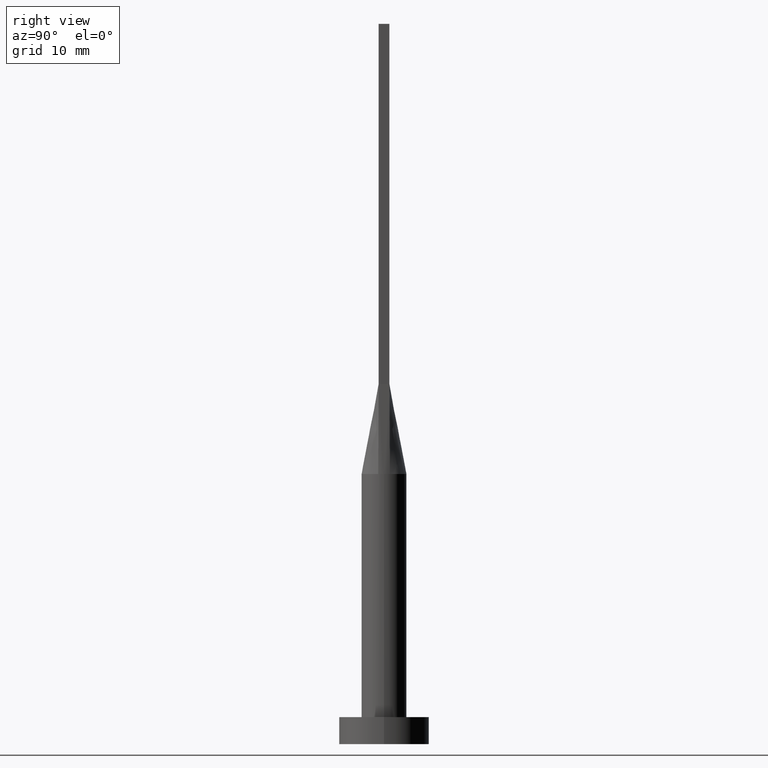
[diagram: clean part render]
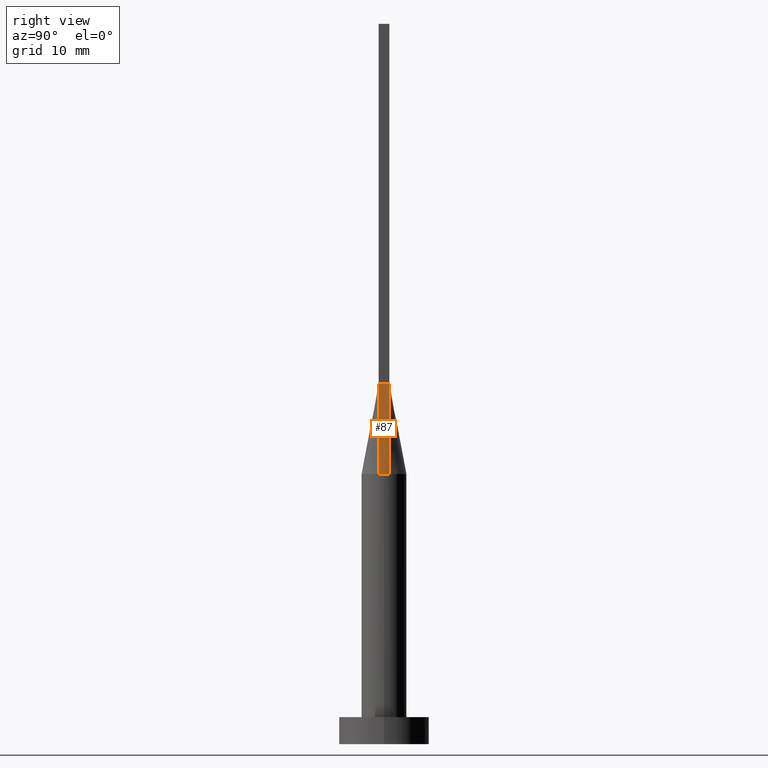
[diagram: same view with one face highlighted and labeled with its STEP entity id]
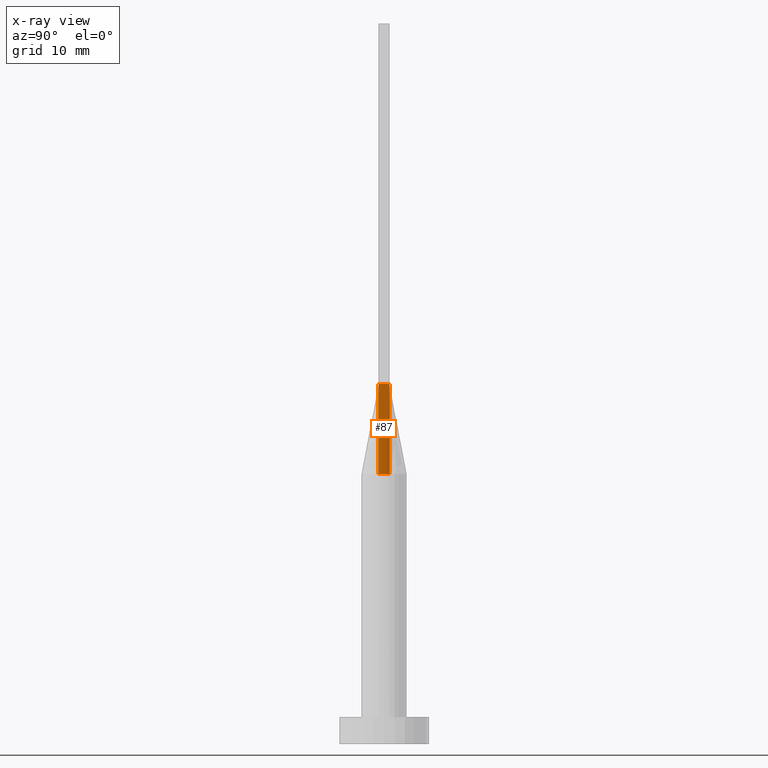
[diagram: x-ray of the same camera — body ghosted, the highlighted face saturated]
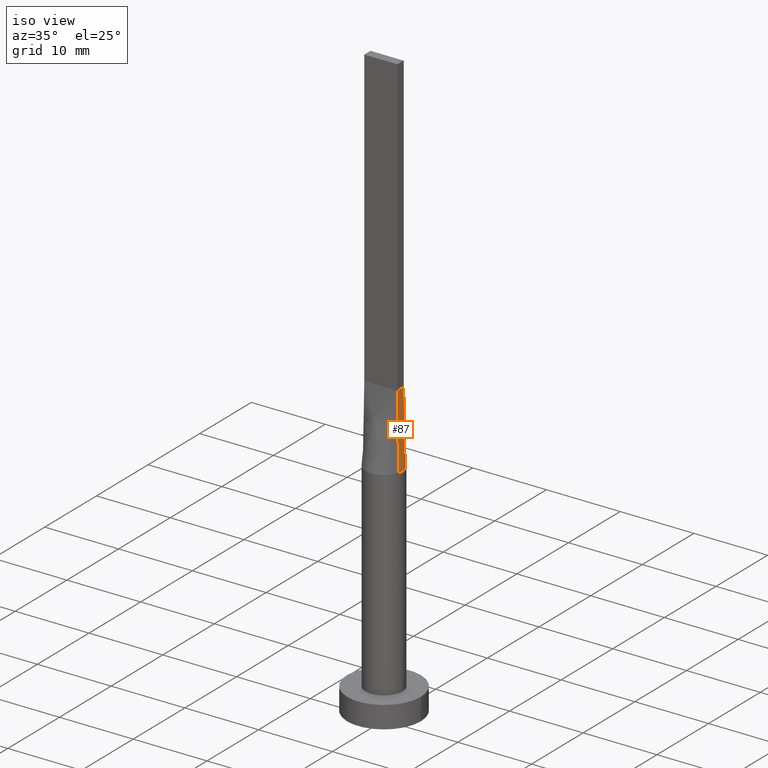
[diagram: same view with one face highlighted and labeled with its STEP entity id]
A machine part, right view. The second image highlights one B-rep face of the part: STEP entity #87.
The next image is the same camera in x-ray: the body ghosted, the highlighted face saturated — about 0% of this face is hidden behind the body in this view.
A second angle (iso view) of the same face is appended — the face is thin or edge-on in the first view.
In plain terms, the highlighted face is a freeform B-spline surface patch.
Its self-contained STEP definition (entity closure, byte-faithful):
#24 = CIRCLE ( 'NONE', #231, 2.500000000000000000 ) ;
#27 = DIRECTION ( 'NONE',  ( -3.614007241618348278E-16, 1.000000000000000000, -0.000000000000000000 ) ) ;
#38 = ORIENTED_EDGE ( 'NONE', *, *, #39, .F. ) ;
#39 = EDGE_CURVE ( 'NONE', #128, #298, #567, .T. ) ;
#50 = FACE_OUTER_BOUND ( 'NONE', #374, .T. ) ;
#85 = DIRECTION ( 'NONE',  ( 1.000000000000000000, 0.000000000000000000, 0.000000000000000000 ) ) ;
#87 = ADVANCED_FACE ( 'NONE', ( #50 ), #121, .T. ) ;
#93 = CARTESIAN_POINT ( 'NONE',  ( 2.470912383581261640, 0.4366877467327808238, 30.00000000000000355 ) ) ;
#99 = CARTESIAN_POINT ( 'NONE',  ( 2.499999999999999112, 0.2184061234416761477, 29.99999999999998934 ) ) ;
#100 = VECTOR ( 'NONE', #141, 1000.000000000000114 ) ;
#103 = CARTESIAN_POINT ( 'NONE',  ( 2.249999999999999556, 0.4000000000000002998, 39.99999999999999289 ) ) ;
#105 = CARTESIAN_POINT ( 'NONE',  ( 2.250000000000000000, -0.5999999999999997558, 40.00000000000000000 ) ) ;
#107 = DIRECTION ( 'NONE',  ( 0.000000000000000000, 0.000000000000000000, 1.000000000000000000 ) ) ;
#121 = B_SPLINE_SURFACE_WITH_KNOTS ( 'NONE', 3, 1, ( 
 ( #137, #186 ),
 ( #179, #317 ),
 ( #536, #495 ),
 ( #99, #500 ),
 ( #93, #103 ),
 ( #279, #456 ) ),
 .UNSPECIFIED., .F., .F., .F.,
 ( 4, 2, 4 ),
 ( 2, 2 ),
 ( 0.000000000000000000, 0.5000000000000000000, 1.000000000000000000 ),
 ( 0.000000000000000000, 1.000000000000000000 ),
 .UNSPECIFIED. ) ;
#123 = VERTEX_POINT ( 'NONE', #133 ) ;
#124 = CARTESIAN_POINT ( 'NONE',  ( 2.249999999999999556, 0.6000000000000001998, 40.00000000000000000 ) ) ;
#128 = VERTEX_POINT ( 'NONE', #538 ) ;
#133 = CARTESIAN_POINT ( 'NONE',  ( 2.499999999999999556, 1.077931475469669239E-17, 29.99999999999999289 ) ) ;
#137 = CARTESIAN_POINT ( 'NONE',  ( 2.415587349003115669, -0.6441566264008309339, 30.00000000000000000 ) ) ;
#141 = DIRECTION ( 'NONE',  ( -0.01655630387018622654, -0.004415014365382924529, 0.9998531874481929593 ) ) ;
#179 = CARTESIAN_POINT ( 'NONE',  ( 2.470912383581262528, -0.4366877467327812123, 30.00000000000000355 ) ) ;
#186 = CARTESIAN_POINT ( 'NONE',  ( 2.250000000000000000, -0.5999999999999997558, 40.00000000000000000 ) ) ;
#190 = CARTESIAN_POINT ( 'NONE',  ( 2.332793674501557390, 0.6220783132004152893, 35.00000000000000000 ) ) ;
#220 = VERTEX_POINT ( 'NONE', #501 ) ;
#231 = AXIS2_PLACEMENT_3D ( 'NONE', #434, #386, #85 ) ;
#245 = CARTESIAN_POINT ( 'NONE',  ( 2.249999999999999556, 0.6000000000000001998, 40.00000000000000000 ) ) ;
#248 = EDGE_CURVE ( 'NONE', #128, #123, #527, .T. ) ;
#264 = LINE ( 'NONE', #124, #334 ) ;
#274 = LINE ( 'NONE', #190, #100 ) ;
#279 = CARTESIAN_POINT ( 'NONE',  ( 2.415587349003115669, 0.6441566264008304898, 30.00000000000000000 ) ) ;
#298 = VERTEX_POINT ( 'NONE', #105 ) ;
#317 = CARTESIAN_POINT ( 'NONE',  ( 2.250000000000000000, -0.3999999999999996336, 39.99999999999999289 ) ) ;
#325 = DIRECTION ( 'NONE',  ( 1.000000000000000000, 3.552713678800500929E-15, 0.000000000000000000 ) ) ;
#330 = VERTEX_POINT ( 'NONE', #245 ) ;
#334 = VECTOR ( 'NONE', #27, 1000.000000000000000 ) ;
#374 = EDGE_LOOP ( 'NONE', ( #431, #488, #519, #378, #38 ) ) ;
#375 = EDGE_CURVE ( 'NONE', #123, #220, #24, .T. ) ;
#378 = ORIENTED_EDGE ( 'NONE', *, *, #391, .F. ) ;
#381 = VECTOR ( 'NONE', #475, 1000.000000000000114 ) ;
#386 = DIRECTION ( 'NONE',  ( 0.000000000000000000, 0.000000000000000000, 1.000000000000000000 ) ) ;
#391 = EDGE_CURVE ( 'NONE', #298, #330, #264, .T. ) ;
#431 = ORIENTED_EDGE ( 'NONE', *, *, #248, .T. ) ;
#434 = CARTESIAN_POINT ( 'NONE',  ( 0.000000000000000000, 0.000000000000000000, 30.00000000000000000 ) ) ;
#456 = CARTESIAN_POINT ( 'NONE',  ( 2.249999999999999556, 0.6000000000000001998, 40.00000000000000000 ) ) ;
#475 = DIRECTION ( 'NONE',  ( -0.01655630387018617797, 0.004415014365382958356, 0.9998531874481929593 ) ) ;
#488 = ORIENTED_EDGE ( 'NONE', *, *, #375, .T. ) ;
#495 = CARTESIAN_POINT ( 'NONE',  ( 2.249999999999999556, -0.1999999999999995670, 39.99999999999999289 ) ) ;
#500 = CARTESIAN_POINT ( 'NONE',  ( 2.249999999999999556, 0.2000000000000003719, 39.99999999999999289 ) ) ;
#501 = CARTESIAN_POINT ( 'NONE',  ( 2.415751997725693823, 0.6442011318043520118, 30.00000000000000000 ) ) ;
#519 = ORIENTED_EDGE ( 'NONE', *, *, #540, .T. ) ;
#527 = CIRCLE ( 'NONE', #574, 2.500000000000000000 ) ;
#536 = CARTESIAN_POINT ( 'NONE',  ( 2.499999999999999556, -0.2184061234416767305, 29.99999999999998934 ) ) ;
#538 = CARTESIAN_POINT ( 'NONE',  ( 2.415783834663384866, -0.6442097370852554183, 30.00000000000000000 ) ) ;
#540 = EDGE_CURVE ( 'NONE', #220, #330, #274, .T. ) ;
#557 = CARTESIAN_POINT ( 'NONE',  ( 0.000000000000000000, 0.000000000000000000, 30.00000000000000000 ) ) ;
#567 = LINE ( 'NONE', #578, #381 ) ;
#574 = AXIS2_PLACEMENT_3D ( 'NONE', #557, #107, #325 ) ;
#578 = CARTESIAN_POINT ( 'NONE',  ( 2.332793674501557390, -0.6220783132004150673, 35.00000000000000000 ) ) ;